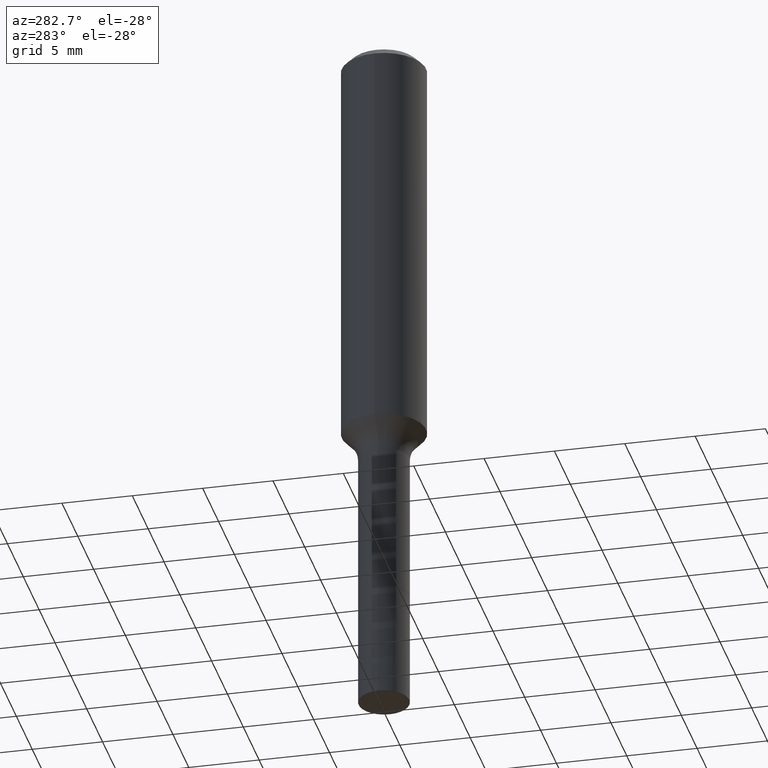
[diagram: clean part render]
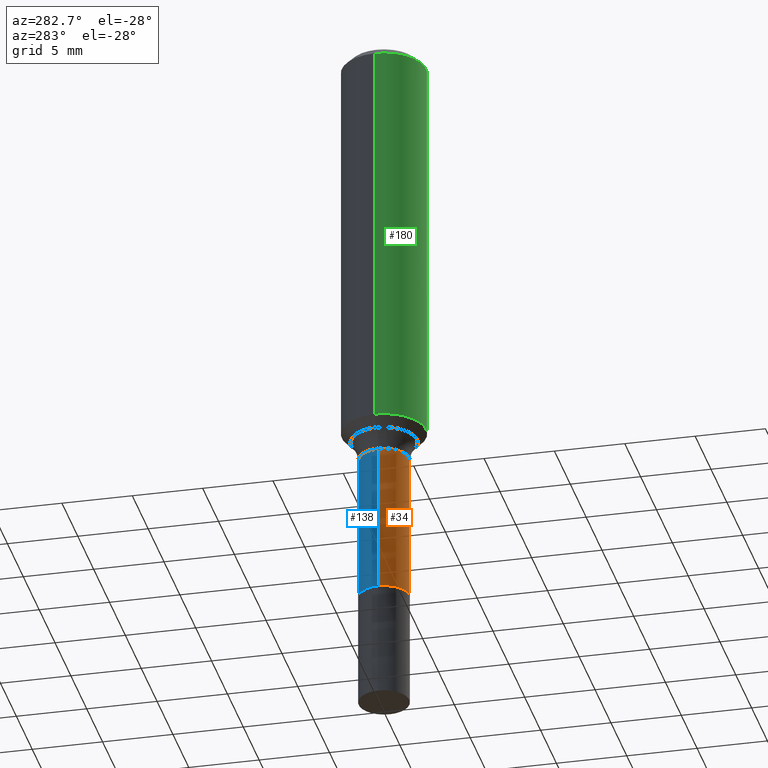
[diagram: same view with three faces highlighted in distinct colors, each labeled with its STEP entity id]
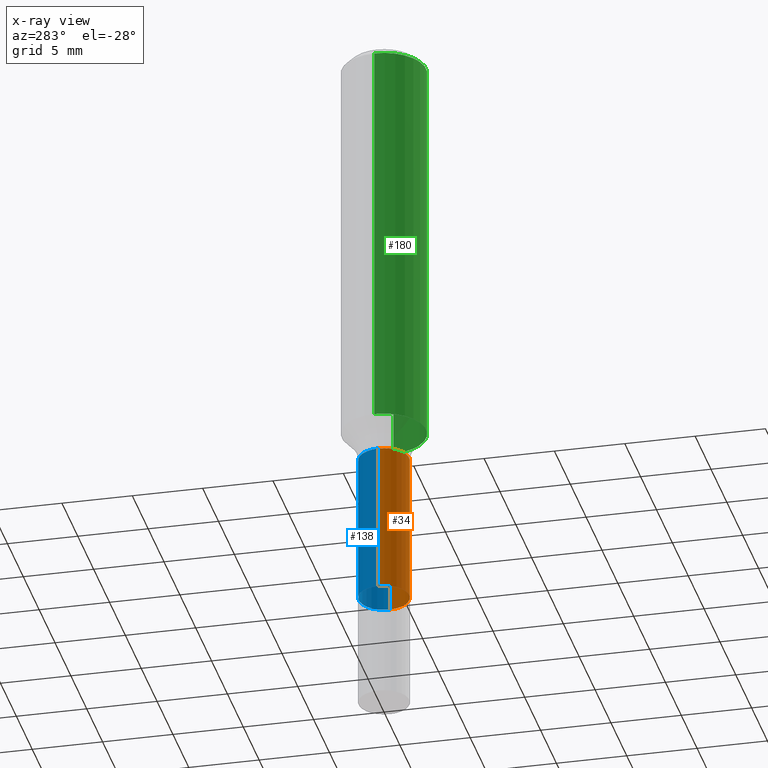
[diagram: x-ray of the same camera — body ghosted, the three highlighted faces saturated]
A machine part, auxiliary view with three faces highlighted in distinct colors.
The next image is the same camera in x-ray (body ghosted, the three faces saturated) — at least one of them is partly hidden behind the body in this view.
Their STEP definitions:

[orange] entity #34 — the highlighted cylindrical surface (edge-blend (fillet) strip) has radius 1.7996 mm, axis along (-0, 0, 1).
#2 = VERTEX_POINT ( 'NONE', #334 ) ;
#4 = EDGE_CURVE ( 'NONE', #164, #142, #250, .T. ) ;
#5 = ORIENTED_EDGE ( 'NONE', *, *, #466, .T. ) ;
#10 = AXIS2_PLACEMENT_3D ( 'NONE', #64, #149, #459 ) ;
#32 = DIRECTION ( 'NONE',  ( 1.000000000000000000, -6.982962677686269077E-15, 0.000000000000000000 ) ) ;
#34 = ADVANCED_FACE ( 'NONE', ( #57 ), #272, .T. ) ;
#57 = FACE_OUTER_BOUND ( 'NONE', #363, .T. ) ;
#64 = CARTESIAN_POINT ( 'NONE',  ( 4.022796186174550060E-29, -5.743486802396973933E-15, -1.645000000000000018 ) ) ;
#96 = DIRECTION ( 'NONE',  ( -2.445468806185136597E-29, 3.491481338843145583E-15, 1.000000000000000000 ) ) ;
#114 = CARTESIAN_POINT ( 'NONE',  ( 0.07084999999999995468, -4.947429057140717622E-16, 3.454771245651418508E-30 ) ) ;
#131 = ORIENTED_EDGE ( 'NONE', *, *, #4, .F. ) ;
#142 = VERTEX_POINT ( 'NONE', #337 ) ;
#149 = DIRECTION ( 'NONE',  ( -2.445468806185136597E-29, 3.491481338843145583E-15, 1.000000000000000000 ) ) ;
#161 = DIRECTION ( 'NONE',  ( -2.445468806185136597E-29, 3.491481338843145583E-15, 1.000000000000000000 ) ) ;
#164 = VERTEX_POINT ( 'NONE', #341 ) ;
#171 = ORIENTED_EDGE ( 'NONE', *, *, #499, .T. ) ;
#194 = LINE ( 'NONE', #114, #401 ) ;
#204 = CIRCLE ( 'NONE', #10, 0.07084999999999998244 ) ;
#238 = DIRECTION ( 'NONE',  ( 1.000000000000000000, -6.982962677686267499E-15, 4.876176775795936353E-29 ) ) ;
#250 = CIRCLE ( 'NONE', #456, 0.07084999999999994080 ) ;
#265 = EDGE_CURVE ( 'NONE', #273, #164, #444, .T. ) ;
#272 = CYLINDRICAL_SURFACE ( 'NONE', #274, 0.07084999999999995468 ) ;
#273 = VERTEX_POINT ( 'NONE', #494 ) ;
#274 = AXIS2_PLACEMENT_3D ( 'NONE', #452, #161, #238 ) ;
#285 = CARTESIAN_POINT ( 'NONE',  ( -0.07084999999999995468, 5.034195282860306597E-16, -3.485065511445598867E-30 ) ) ;
#334 = CARTESIAN_POINT ( 'NONE',  ( 0.07084999999999998244, -6.238229708111046188E-15, -1.645000000000000018 ) ) ;
#337 = CARTESIAN_POINT ( 'NONE',  ( 0.07084999999999994080, -4.756095879772131283E-15, -1.220499999999999918 ) ) ;
#341 = CARTESIAN_POINT ( 'NONE',  ( -0.07084999999999994080, -4.499000359941485328E-15, -1.220499999999999918 ) ) ;
#363 = EDGE_LOOP ( 'NONE', ( #367, #5, #171, #131 ) ) ;
#367 = ORIENTED_EDGE ( 'NONE', *, *, #265, .F. ) ;
#390 = CARTESIAN_POINT ( 'NONE',  ( 2.984694677948959472E-29, -4.261352974058059028E-15, -1.220499999999999918 ) ) ;
#400 = DIRECTION ( 'NONE',  ( -2.445468806185136877E-29, 3.491481338843145188E-15, 1.000000000000000000 ) ) ;
#401 = VECTOR ( 'NONE', #400, 39.37007874015748143 ) ;
#444 = LINE ( 'NONE', #285, #477 ) ;
#452 = CARTESIAN_POINT ( 'NONE',  ( 0.000000000000000000, 0.000000000000000000, 0.000000000000000000 ) ) ;
#456 = AXIS2_PLACEMENT_3D ( 'NONE', #390, #96, #32 ) ;
#459 = DIRECTION ( 'NONE',  ( 1.000000000000000000, -6.982962677686265133E-15, 0.000000000000000000 ) ) ;
#466 = EDGE_CURVE ( 'NONE', #273, #2, #204, .T. ) ;
#477 = VECTOR ( 'NONE', #483, 39.37007874015748143 ) ;
#483 = DIRECTION ( 'NONE',  ( -2.445468806185136877E-29, 3.491481338843145188E-15, 1.000000000000000000 ) ) ;
#494 = CARTESIAN_POINT ( 'NONE',  ( -0.07084999999999999631, -4.499000359941484539E-15, -1.645000000000000018 ) ) ;
#499 = EDGE_CURVE ( 'NONE', #2, #142, #194, .T. ) ;

[blue] entity #138 — the highlighted cylindrical surface (edge-blend (fillet) strip) has radius 1.7996 mm, axis along (-0, 0, 1).
#2 = VERTEX_POINT ( 'NONE', #334 ) ;
#20 = DIRECTION ( 'NONE',  ( 1.000000000000000000, -6.982962677686269077E-15, 0.000000000000000000 ) ) ;
#21 = AXIS2_PLACEMENT_3D ( 'NONE', #507, #378, #20 ) ;
#30 = ORIENTED_EDGE ( 'NONE', *, *, #265, .T. ) ;
#62 = DIRECTION ( 'NONE',  ( 1.000000000000000000, -6.982962677686265133E-15, 0.000000000000000000 ) ) ;
#81 = EDGE_CURVE ( 'NONE', #2, #273, #395, .T. ) ;
#114 = CARTESIAN_POINT ( 'NONE',  ( 0.07084999999999995468, -4.947429057140717622E-16, 3.454771245651418508E-30 ) ) ;
#137 = AXIS2_PLACEMENT_3D ( 'NONE', #184, #147, #62 ) ;
#138 = ADVANCED_FACE ( 'NONE', ( #235 ), #233, .T. ) ;
#142 = VERTEX_POINT ( 'NONE', #337 ) ;
#147 = DIRECTION ( 'NONE',  ( -2.445468806185136597E-29, 3.491481338843145583E-15, 1.000000000000000000 ) ) ;
#164 = VERTEX_POINT ( 'NONE', #341 ) ;
#184 = CARTESIAN_POINT ( 'NONE',  ( 4.022796186174550060E-29, -5.743486802396973933E-15, -1.645000000000000018 ) ) ;
#187 = CARTESIAN_POINT ( 'NONE',  ( 0.000000000000000000, 0.000000000000000000, 0.000000000000000000 ) ) ;
#194 = LINE ( 'NONE', #114, #401 ) ;
#209 = ORIENTED_EDGE ( 'NONE', *, *, #499, .F. ) ;
#215 = ORIENTED_EDGE ( 'NONE', *, *, #369, .F. ) ;
#233 = CYLINDRICAL_SURFACE ( 'NONE', #302, 0.07084999999999995468 ) ;
#235 = FACE_OUTER_BOUND ( 'NONE', #277, .T. ) ;
#252 = CIRCLE ( 'NONE', #21, 0.07084999999999994080 ) ;
#265 = EDGE_CURVE ( 'NONE', #273, #164, #444, .T. ) ;
#273 = VERTEX_POINT ( 'NONE', #494 ) ;
#277 = EDGE_LOOP ( 'NONE', ( #349, #30, #215, #209 ) ) ;
#285 = CARTESIAN_POINT ( 'NONE',  ( -0.07084999999999995468, 5.034195282860306597E-16, -3.485065511445598867E-30 ) ) ;
#300 = DIRECTION ( 'NONE',  ( -2.445468806185136597E-29, 3.491481338843145583E-15, 1.000000000000000000 ) ) ;
#302 = AXIS2_PLACEMENT_3D ( 'NONE', #187, #300, #347 ) ;
#334 = CARTESIAN_POINT ( 'NONE',  ( 0.07084999999999998244, -6.238229708111046188E-15, -1.645000000000000018 ) ) ;
#337 = CARTESIAN_POINT ( 'NONE',  ( 0.07084999999999994080, -4.756095879772131283E-15, -1.220499999999999918 ) ) ;
#341 = CARTESIAN_POINT ( 'NONE',  ( -0.07084999999999994080, -4.499000359941485328E-15, -1.220499999999999918 ) ) ;
#347 = DIRECTION ( 'NONE',  ( 1.000000000000000000, -6.982962677686267499E-15, 4.876176775795936353E-29 ) ) ;
#349 = ORIENTED_EDGE ( 'NONE', *, *, #81, .T. ) ;
#369 = EDGE_CURVE ( 'NONE', #142, #164, #252, .T. ) ;
#378 = DIRECTION ( 'NONE',  ( -2.445468806185136597E-29, 3.491481338843145583E-15, 1.000000000000000000 ) ) ;
#395 = CIRCLE ( 'NONE', #137, 0.07084999999999998244 ) ;
#400 = DIRECTION ( 'NONE',  ( -2.445468806185136877E-29, 3.491481338843145188E-15, 1.000000000000000000 ) ) ;
#401 = VECTOR ( 'NONE', #400, 39.37007874015748143 ) ;
#444 = LINE ( 'NONE', #285, #477 ) ;
#477 = VECTOR ( 'NONE', #483, 39.37007874015748143 ) ;
#483 = DIRECTION ( 'NONE',  ( -2.445468806185136877E-29, 3.491481338843145188E-15, 1.000000000000000000 ) ) ;
#494 = CARTESIAN_POINT ( 'NONE',  ( -0.07084999999999999631, -4.499000359941484539E-15, -1.645000000000000018 ) ) ;
#499 = EDGE_CURVE ( 'NONE', #2, #142, #194, .T. ) ;
#507 = CARTESIAN_POINT ( 'NONE',  ( 2.984694677948959472E-29, -4.261352974058059028E-15, -1.220499999999999918 ) ) ;

[green] entity #180 — the highlighted cylindrical surface (partial cylindrical patch) has radius 2.9997 mm, axis along (-0, 0, 1).
#22 = ORIENTED_EDGE ( 'NONE', *, *, #393, .F. ) ;
#33 = VERTEX_POINT ( 'NONE', #511 ) ;
#44 = VERTEX_POINT ( 'NONE', #297 ) ;
#105 = LINE ( 'NONE', #108, #210 ) ;
#108 = CARTESIAN_POINT ( 'NONE',  ( -0.1181000000000000660, 8.391509709326787887E-16, -5.809262341591047287E-30 ) ) ;
#115 = CYLINDRICAL_SURFACE ( 'NONE', #448, 0.1181000000000000660 ) ;
#145 = CARTESIAN_POINT ( 'NONE',  ( 2.783720525680578917E-29, -3.974415148288161272E-15, -1.138317740402138289 ) ) ;
#155 = CARTESIAN_POINT ( 'NONE',  ( 5.776197320209328408E-31, -8.246878922347560526E-17, -0.02362000000000014435 ) ) ;
#156 = VECTOR ( 'NONE', #447, 39.37007874015748143 ) ;
#180 = ADVANCED_FACE ( 'NONE', ( #304 ), #115, .T. ) ;
#182 = ORIENTED_EDGE ( 'NONE', *, *, #364, .T. ) ;
#193 = DIRECTION ( 'NONE',  ( -2.445468806185136877E-29, 3.491481338843145188E-15, 1.000000000000000000 ) ) ;
#210 = VECTOR ( 'NONE', #193, 39.37007874015748143 ) ;
#223 = CARTESIAN_POINT ( 'NONE',  ( -0.1180999999999999966, -1.189290997823139379E-15, -0.02362000000000014435 ) ) ;
#225 = CARTESIAN_POINT ( 'NONE',  ( 0.000000000000000000, 0.000000000000000000, 0.000000000000000000 ) ) ;
#230 = DIRECTION ( 'NONE',  ( -2.445468806185136597E-29, 3.491481338843145583E-15, 1.000000000000000000 ) ) ;
#260 = DIRECTION ( 'NONE',  ( 1.000000000000000000, -6.982962677686266711E-15, 0.000000000000000000 ) ) ;
#269 = DIRECTION ( 'NONE',  ( -2.445468806185136597E-29, 3.491481338843145583E-15, 1.000000000000000000 ) ) ;
#279 = EDGE_CURVE ( 'NONE', #436, #44, #361, .T. ) ;
#297 = CARTESIAN_POINT ( 'NONE',  ( 0.1180999999999999966, -9.071566814582237199E-16, -0.02362000000000014435 ) ) ;
#304 = FACE_OUTER_BOUND ( 'NONE', #433, .T. ) ;
#306 = ORIENTED_EDGE ( 'NONE', *, *, #279, .T. ) ;
#310 = CIRCLE ( 'NONE', #397, 0.1180999999999999966 ) ;
#340 = DIRECTION ( 'NONE',  ( 1.000000000000000000, -6.982962677686265133E-15, 0.000000000000000000 ) ) ;
#361 = LINE ( 'NONE', #453, #156 ) ;
#364 = EDGE_CURVE ( 'NONE', #33, #436, #457, .T. ) ;
#365 = VERTEX_POINT ( 'NONE', #223 ) ;
#380 = DIRECTION ( 'NONE',  ( 1.000000000000000000, -6.982962677686266711E-15, 4.876176775795936353E-29 ) ) ;
#393 = EDGE_CURVE ( 'NONE', #365, #44, #310, .T. ) ;
#397 = AXIS2_PLACEMENT_3D ( 'NONE', #155, #230, #260 ) ;
#416 = DIRECTION ( 'NONE',  ( -2.445468806185136597E-29, 3.491481338843145583E-15, 1.000000000000000000 ) ) ;
#420 = CARTESIAN_POINT ( 'NONE',  ( 0.1181000000000001354, -4.799103040522910324E-15, -1.138317740402138289 ) ) ;
#427 = EDGE_CURVE ( 'NONE', #33, #365, #105, .T. ) ;
#433 = EDGE_LOOP ( 'NONE', ( #479, #182, #306, #22 ) ) ;
#436 = VERTEX_POINT ( 'NONE', #420 ) ;
#447 = DIRECTION ( 'NONE',  ( -2.445468806185136877E-29, 3.491481338843145188E-15, 1.000000000000000000 ) ) ;
#448 = AXIS2_PLACEMENT_3D ( 'NONE', #225, #269, #380 ) ;
#453 = CARTESIAN_POINT ( 'NONE',  ( 0.1181000000000000660, -8.246878922347485584E-16, 5.758764772215003944E-30 ) ) ;
#457 = CIRCLE ( 'NONE', #501, 0.1181000000000001354 ) ;
#479 = ORIENTED_EDGE ( 'NONE', *, *, #427, .F. ) ;
#501 = AXIS2_PLACEMENT_3D ( 'NONE', #145, #416, #340 ) ;
#511 = CARTESIAN_POINT ( 'NONE',  ( -0.1181000000000001354, -3.135264177355482681E-15, -1.138317740402138289 ) ) ;